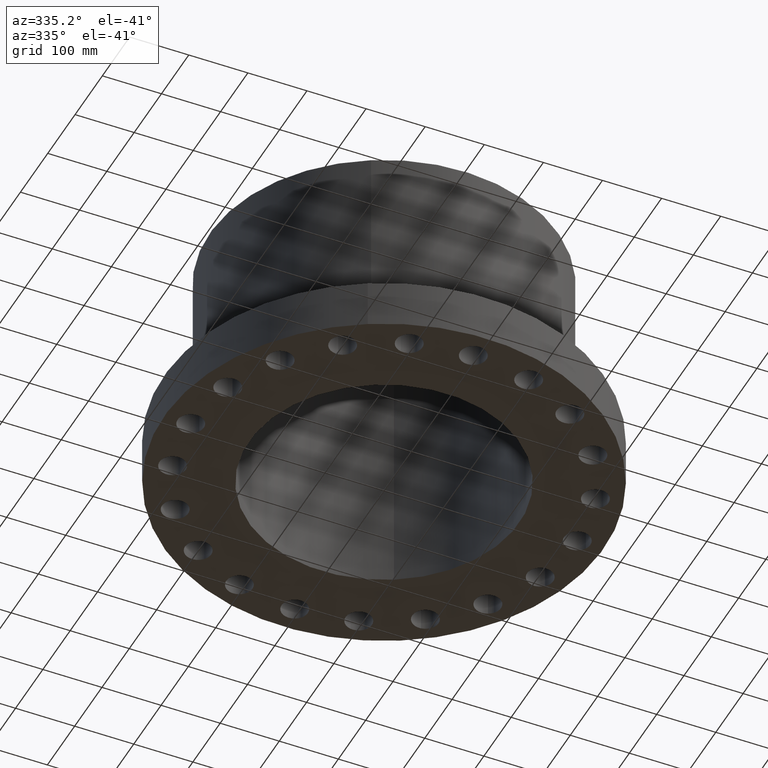
[diagram: clean part render]
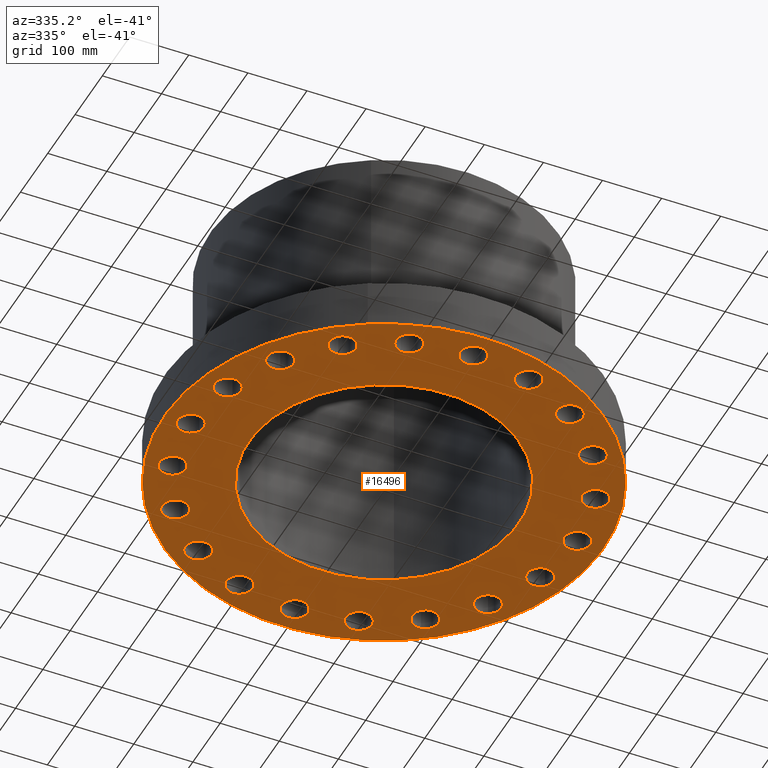
[diagram: same view with one face highlighted and labeled with its STEP entity id]
A machine part, auxiliary view. The second image highlights one B-rep face of the part: STEP entity #16496.
In plain terms, the highlighted planar face has unit normal (0, 0, 1).
Its self-contained STEP definition (entity closure, byte-faithful):
#65=AXIS2_PLACEMENT_3D('Circle Axis2P3D',#63,#64,$) ;
#82=AXIS2_PLACEMENT_3D('Circle Axis2P3D',#80,#81,$) ;
#505=AXIS2_PLACEMENT_3D('Circle Axis2P3D',#503,#504,$) ;
#531=AXIS2_PLACEMENT_3D('Circle Axis2P3D',#529,#530,$) ;
#605=AXIS2_PLACEMENT_3D('Circle Axis2P3D',#603,#604,$) ;
#617=AXIS2_PLACEMENT_3D('Circle Axis2P3D',#615,#616,$) ;
#648=AXIS2_PLACEMENT_3D('Circle Axis2P3D',#646,#647,$) ;
#660=AXIS2_PLACEMENT_3D('Circle Axis2P3D',#658,#659,$) ;
#691=AXIS2_PLACEMENT_3D('Circle Axis2P3D',#689,#690,$) ;
#703=AXIS2_PLACEMENT_3D('Circle Axis2P3D',#701,#702,$) ;
#734=AXIS2_PLACEMENT_3D('Circle Axis2P3D',#732,#733,$) ;
#746=AXIS2_PLACEMENT_3D('Circle Axis2P3D',#744,#745,$) ;
#777=AXIS2_PLACEMENT_3D('Circle Axis2P3D',#775,#776,$) ;
#789=AXIS2_PLACEMENT_3D('Circle Axis2P3D',#787,#788,$) ;
#820=AXIS2_PLACEMENT_3D('Circle Axis2P3D',#818,#819,$) ;
#832=AXIS2_PLACEMENT_3D('Circle Axis2P3D',#830,#831,$) ;
#863=AXIS2_PLACEMENT_3D('Circle Axis2P3D',#861,#862,$) ;
#875=AXIS2_PLACEMENT_3D('Circle Axis2P3D',#873,#874,$) ;
#906=AXIS2_PLACEMENT_3D('Circle Axis2P3D',#904,#905,$) ;
#918=AXIS2_PLACEMENT_3D('Circle Axis2P3D',#916,#917,$) ;
#949=AXIS2_PLACEMENT_3D('Circle Axis2P3D',#947,#948,$) ;
#961=AXIS2_PLACEMENT_3D('Circle Axis2P3D',#959,#960,$) ;
#992=AXIS2_PLACEMENT_3D('Circle Axis2P3D',#990,#991,$) ;
#1004=AXIS2_PLACEMENT_3D('Circle Axis2P3D',#1002,#1003,$) ;
#1035=AXIS2_PLACEMENT_3D('Circle Axis2P3D',#1033,#1034,$) ;
#1047=AXIS2_PLACEMENT_3D('Circle Axis2P3D',#1045,#1046,$) ;
#1078=AXIS2_PLACEMENT_3D('Circle Axis2P3D',#1076,#1077,$) ;
#1090=AXIS2_PLACEMENT_3D('Circle Axis2P3D',#1088,#1089,$) ;
#1121=AXIS2_PLACEMENT_3D('Circle Axis2P3D',#1119,#1120,$) ;
#1133=AXIS2_PLACEMENT_3D('Circle Axis2P3D',#1131,#1132,$) ;
#1164=AXIS2_PLACEMENT_3D('Circle Axis2P3D',#1162,#1163,$) ;
#1176=AXIS2_PLACEMENT_3D('Circle Axis2P3D',#1174,#1175,$) ;
#1207=AXIS2_PLACEMENT_3D('Circle Axis2P3D',#1205,#1206,$) ;
#1219=AXIS2_PLACEMENT_3D('Circle Axis2P3D',#1217,#1218,$) ;
#1250=AXIS2_PLACEMENT_3D('Circle Axis2P3D',#1248,#1249,$) ;
#1262=AXIS2_PLACEMENT_3D('Circle Axis2P3D',#1260,#1261,$) ;
#1293=AXIS2_PLACEMENT_3D('Circle Axis2P3D',#1291,#1292,$) ;
#1305=AXIS2_PLACEMENT_3D('Circle Axis2P3D',#1303,#1304,$) ;
#1336=AXIS2_PLACEMENT_3D('Circle Axis2P3D',#1334,#1335,$) ;
#1348=AXIS2_PLACEMENT_3D('Circle Axis2P3D',#1346,#1347,$) ;
#1379=AXIS2_PLACEMENT_3D('Circle Axis2P3D',#1377,#1378,$) ;
#1391=AXIS2_PLACEMENT_3D('Circle Axis2P3D',#1389,#1390,$) ;
#16367=AXIS2_PLACEMENT_3D('Circle Axis2P3D',#16365,#16366,$) ;
#16393=AXIS2_PLACEMENT_3D('Circle Axis2P3D',#16391,#16392,$) ;
#16406=AXIS2_PLACEMENT_3D('Plane Axis2P3D',#16403,#16404,#16405) ;
#46=CARTESIAN_POINT('Vertex',(12.1071152584,-0.41949734628,2.2401153548E-016)) ;
#60=CARTESIAN_POINT('Vertex',(13.6428847417,0.41949734628,2.2401153548E-016)) ;
#63=CARTESIAN_POINT('Axis2P3D Location',(12.8750000001,0.,0.)) ;
#80=CARTESIAN_POINT('Axis2P3D Location',(12.8750000001,0.,0.)) ;
#503=CARTESIAN_POINT('Axis2P3D Location',(0.,0.,3.35689481461E-015)) ;
#507=CARTESIAN_POINT('Vertex',(-7.01159850211,-12.8346449677,3.35689481461E-015)) ;
#509=CARTESIAN_POINT('Vertex',(7.01159850211,12.8346449677,3.35689481461E-015)) ;
#529=CARTESIAN_POINT('Axis2P3D Location',(0.,0.,3.35689481461E-015)) ;
#593=CARTESIAN_POINT('Vertex',(11.3849190509,-4.14027005245,2.2401153548E-016)) ;
#600=CARTESIAN_POINT('Vertex',(13.1047862438,-3.81691755274,2.2401153548E-016)) ;
#603=CARTESIAN_POINT('Axis2P3D Location',(12.2448526473,-3.97859380259,0.)) ;
#615=CARTESIAN_POINT('Axis2P3D Location',(12.2448526473,-3.97859380259,0.)) ;
#636=CARTESIAN_POINT('Vertex',(9.54828764338,-7.45576427893,2.22372426684E-016)) ;
#643=CARTESIAN_POINT('Vertex',(11.2838999619,-7.67970596767,2.22372426684E-016)) ;
#646=CARTESIAN_POINT('Axis2P3D Location',(10.4160938026,-7.5677351233,-3.2782175924E-018)) ;
#658=CARTESIAN_POINT('Axis2P3D Location',(10.4160938026,-7.5677351233,-3.2782175924E-018)) ;
#679=CARTESIAN_POINT('Vertex',(6.77700331445,-10.0414363504,2.2401153548E-016)) ;
#686=CARTESIAN_POINT('Vertex',(8.35846693214,-10.7907512548,2.2401153548E-016)) ;
#689=CARTESIAN_POINT('Axis2P3D Location',(7.5677351233,-10.4160938026,0.)) ;
#701=CARTESIAN_POINT('Axis2P3D Location',(7.5677351233,-10.4160938026,0.)) ;
#722=CARTESIAN_POINT('Vertex',(3.34233868295,-11.6441826691,2.2401153548E-016)) ;
#729=CARTESIAN_POINT('Vertex',(4.61484892224,-12.8455226256,2.2401153548E-016)) ;
#732=CARTESIAN_POINT('Axis2P3D Location',(3.97859380259,-12.2448526473,0.)) ;
#744=CARTESIAN_POINT('Axis2P3D Location',(3.97859380259,-12.2448526473,0.)) ;
#765=CARTESIAN_POINT('Vertex',(-0.41949734628,-12.1071152584,2.2401153548E-016)) ;
#772=CARTESIAN_POINT('Vertex',(0.41949734628,-13.6428847417,2.2401153548E-016)) ;
#775=CARTESIAN_POINT('Axis2P3D Location',(3.64719066538E-015,-12.8750000001,0.)) ;
#787=CARTESIAN_POINT('Axis2P3D Location',(3.64719066538E-015,-12.8750000001,0.)) ;
#808=CARTESIAN_POINT('Vertex',(-4.14027005245,-11.3849190509,2.2401153548E-016)) ;
#815=CARTESIAN_POINT('Vertex',(-3.81691755274,-13.1047862438,2.2401153548E-016)) ;
#818=CARTESIAN_POINT('Axis2P3D Location',(-3.97859380259,-12.2448526473,0.)) ;
#830=CARTESIAN_POINT('Axis2P3D Location',(-3.97859380259,-12.2448526473,0.)) ;
#851=CARTESIAN_POINT('Vertex',(-7.45576427893,-9.54828764338,2.2401153548E-016)) ;
#858=CARTESIAN_POINT('Vertex',(-7.67970596767,-11.2838999619,2.2401153548E-016)) ;
#861=CARTESIAN_POINT('Axis2P3D Location',(-7.5677351233,-10.4160938026,0.)) ;
#873=CARTESIAN_POINT('Axis2P3D Location',(-7.5677351233,-10.4160938026,0.)) ;
#894=CARTESIAN_POINT('Vertex',(-10.0414363504,-6.77700331445,2.2401153548E-016)) ;
#901=CARTESIAN_POINT('Vertex',(-10.7907512548,-8.35846693214,2.2401153548E-016)) ;
#904=CARTESIAN_POINT('Axis2P3D Location',(-10.4160938026,-7.5677351233,0.)) ;
#916=CARTESIAN_POINT('Axis2P3D Location',(-10.4160938026,-7.5677351233,0.)) ;
#937=CARTESIAN_POINT('Vertex',(-11.6441826691,-3.34233868295,2.2401153548E-016)) ;
#944=CARTESIAN_POINT('Vertex',(-12.8455226256,-4.61484892224,2.2401153548E-016)) ;
#947=CARTESIAN_POINT('Axis2P3D Location',(-12.2448526473,-3.97859380259,0.)) ;
#959=CARTESIAN_POINT('Axis2P3D Location',(-12.2448526473,-3.97859380259,0.)) ;
#980=CARTESIAN_POINT('Vertex',(-12.1071152584,0.41949734628,2.2401153548E-016)) ;
#987=CARTESIAN_POINT('Vertex',(-13.6428847417,-0.41949734628,2.2401153548E-016)) ;
#990=CARTESIAN_POINT('Axis2P3D Location',(-12.8750000001,-7.29438133075E-015,0.)) ;
#1002=CARTESIAN_POINT('Axis2P3D Location',(-12.8750000001,-7.29438133075E-015,0.)) ;
#1023=CARTESIAN_POINT('Vertex',(-11.3849190509,4.14027005245,2.2401153548E-016)) ;
#1030=CARTESIAN_POINT('Vertex',(-13.1047862438,3.81691755274,2.2401153548E-016)) ;
#1033=CARTESIAN_POINT('Axis2P3D Location',(-12.2448526473,3.97859380259,0.)) ;
#1045=CARTESIAN_POINT('Axis2P3D Location',(-12.2448526473,3.97859380259,0.)) ;
#1066=CARTESIAN_POINT('Vertex',(-9.54828764338,7.45576427893,2.22372426684E-016)) ;
#1073=CARTESIAN_POINT('Vertex',(-11.2838999619,7.67970596767,2.22372426684E-016)) ;
#1076=CARTESIAN_POINT('Axis2P3D Location',(-10.4160938026,7.5677351233,-3.2782175924E-018)) ;
#1088=CARTESIAN_POINT('Axis2P3D Location',(-10.4160938026,7.5677351233,-3.2782175924E-018)) ;
#1109=CARTESIAN_POINT('Vertex',(-6.77700331445,10.0414363504,2.2401153548E-016)) ;
#1116=CARTESIAN_POINT('Vertex',(-8.35846693214,10.7907512548,2.2401153548E-016)) ;
#1119=CARTESIAN_POINT('Axis2P3D Location',(-7.5677351233,10.4160938026,0.)) ;
#1131=CARTESIAN_POINT('Axis2P3D Location',(-7.5677351233,10.4160938026,0.)) ;
#1152=CARTESIAN_POINT('Vertex',(-3.34233868295,11.6441826691,2.22372426684E-016)) ;
#1159=CARTESIAN_POINT('Vertex',(-4.61484892224,12.8455226256,2.22372426684E-016)) ;
#1162=CARTESIAN_POINT('Axis2P3D Location',(-3.97859380259,12.2448526473,-3.2782175924E-018)) ;
#1174=CARTESIAN_POINT('Axis2P3D Location',(-3.97859380259,12.2448526473,-3.2782175924E-018)) ;
#1195=CARTESIAN_POINT('Vertex',(0.41949734628,12.1071152584,2.2401153548E-016)) ;
#1202=CARTESIAN_POINT('Vertex',(-0.41949734628,13.6428847417,2.2401153548E-016)) ;
#1205=CARTESIAN_POINT('Axis2P3D Location',(-1.38003962845E-014,12.8750000001,0.)) ;
#1217=CARTESIAN_POINT('Axis2P3D Location',(-1.38003962845E-014,12.8750000001,0.)) ;
#1238=CARTESIAN_POINT('Vertex',(4.14027005245,11.3849190509,2.22372426684E-016)) ;
#1245=CARTESIAN_POINT('Vertex',(3.81691755274,13.1047862438,2.22372426684E-016)) ;
#1248=CARTESIAN_POINT('Axis2P3D Location',(3.97859380259,12.2448526473,-3.2782175924E-018)) ;
#1260=CARTESIAN_POINT('Axis2P3D Location',(3.97859380259,12.2448526473,-3.2782175924E-018)) ;
#1281=CARTESIAN_POINT('Vertex',(7.45576427893,9.54828764338,2.2401153548E-016)) ;
#1288=CARTESIAN_POINT('Vertex',(7.67970596767,11.2838999619,2.2401153548E-016)) ;
#1291=CARTESIAN_POINT('Axis2P3D Location',(7.5677351233,10.4160938026,0.)) ;
#1303=CARTESIAN_POINT('Axis2P3D Location',(7.5677351233,10.4160938026,0.)) ;
#1324=CARTESIAN_POINT('Vertex',(10.0414363504,6.77700331445,2.2401153548E-016)) ;
#1331=CARTESIAN_POINT('Vertex',(10.7907512548,8.35846693214,2.2401153548E-016)) ;
#1334=CARTESIAN_POINT('Axis2P3D Location',(10.4160938026,7.5677351233,0.)) ;
#1346=CARTESIAN_POINT('Axis2P3D Location',(10.4160938026,7.5677351233,0.)) ;
#1367=CARTESIAN_POINT('Vertex',(11.6441826691,3.34233868295,2.22372426684E-016)) ;
#1374=CARTESIAN_POINT('Vertex',(12.8455226256,4.61484892224,2.22372426684E-016)) ;
#1377=CARTESIAN_POINT('Axis2P3D Location',(12.2448526473,3.97859380259,-3.2782175924E-018)) ;
#1389=CARTESIAN_POINT('Axis2P3D Location',(12.2448526473,3.97859380259,-3.2782175924E-018)) ;
#16365=CARTESIAN_POINT('Axis2P3D Location',(0.,0.,0.)) ;
#16369=CARTESIAN_POINT('Vertex',(-4.31482984746,-7.89824305704,0.)) ;
#16371=CARTESIAN_POINT('Vertex',(4.31482984746,7.89824305704,0.)) ;
#16391=CARTESIAN_POINT('Axis2P3D Location',(0.,0.,0.)) ;
#16403=CARTESIAN_POINT('Axis2P3D Location',(0.,0.,0.)) ;
#64=DIRECTION('Axis2P3D Direction',(0.,-0.,0.0393700787402)) ;
#81=DIRECTION('Axis2P3D Direction',(0.,-0.,0.0393700787402)) ;
#504=DIRECTION('Axis2P3D Direction',(0.,0.,-0.0393700787402)) ;
#530=DIRECTION('Axis2P3D Direction',(0.,0.,-0.0393700787402)) ;
#604=DIRECTION('Axis2P3D Direction',(-0.,0.,0.0393700787402)) ;
#616=DIRECTION('Axis2P3D Direction',(-0.,0.,0.0393700787402)) ;
#647=DIRECTION('Axis2P3D Direction',(-0.,0.,0.0393700787402)) ;
#659=DIRECTION('Axis2P3D Direction',(-0.,0.,0.0393700787402)) ;
#690=DIRECTION('Axis2P3D Direction',(-0.,0.,0.0393700787402)) ;
#702=DIRECTION('Axis2P3D Direction',(-0.,0.,0.0393700787402)) ;
#733=DIRECTION('Axis2P3D Direction',(-0.,0.,0.0393700787402)) ;
#745=DIRECTION('Axis2P3D Direction',(-0.,0.,0.0393700787402)) ;
#776=DIRECTION('Axis2P3D Direction',(-0.,0.,0.0393700787402)) ;
#788=DIRECTION('Axis2P3D Direction',(-0.,0.,0.0393700787402)) ;
#819=DIRECTION('Axis2P3D Direction',(0.,0.,0.0393700787402)) ;
#831=DIRECTION('Axis2P3D Direction',(0.,0.,0.0393700787402)) ;
#862=DIRECTION('Axis2P3D Direction',(0.,0.,0.0393700787402)) ;
#874=DIRECTION('Axis2P3D Direction',(0.,0.,0.0393700787402)) ;
#905=DIRECTION('Axis2P3D Direction',(0.,0.,0.0393700787402)) ;
#917=DIRECTION('Axis2P3D Direction',(0.,0.,0.0393700787402)) ;
#948=DIRECTION('Axis2P3D Direction',(0.,0.,0.0393700787402)) ;
#960=DIRECTION('Axis2P3D Direction',(0.,0.,0.0393700787402)) ;
#991=DIRECTION('Axis2P3D Direction',(0.,0.,0.0393700787402)) ;
#1003=DIRECTION('Axis2P3D Direction',(0.,0.,0.0393700787402)) ;
#1034=DIRECTION('Axis2P3D Direction',(0.,0.,0.0393700787402)) ;
#1046=DIRECTION('Axis2P3D Direction',(0.,0.,0.0393700787402)) ;
#1077=DIRECTION('Axis2P3D Direction',(0.,0.,0.0393700787402)) ;
#1089=DIRECTION('Axis2P3D Direction',(0.,0.,0.0393700787402)) ;
#1120=DIRECTION('Axis2P3D Direction',(0.,0.,0.0393700787402)) ;
#1132=DIRECTION('Axis2P3D Direction',(0.,0.,0.0393700787402)) ;
#1163=DIRECTION('Axis2P3D Direction',(0.,0.,0.0393700787402)) ;
#1175=DIRECTION('Axis2P3D Direction',(0.,0.,0.0393700787402)) ;
#1206=DIRECTION('Axis2P3D Direction',(0.,0.,0.0393700787402)) ;
#1218=DIRECTION('Axis2P3D Direction',(0.,0.,0.0393700787402)) ;
#1249=DIRECTION('Axis2P3D Direction',(0.,-0.,0.0393700787402)) ;
#1261=DIRECTION('Axis2P3D Direction',(0.,-0.,0.0393700787402)) ;
#1292=DIRECTION('Axis2P3D Direction',(0.,-0.,0.0393700787402)) ;
#1304=DIRECTION('Axis2P3D Direction',(0.,-0.,0.0393700787402)) ;
#1335=DIRECTION('Axis2P3D Direction',(0.,-0.,0.0393700787402)) ;
#1347=DIRECTION('Axis2P3D Direction',(0.,-0.,0.0393700787402)) ;
#1378=DIRECTION('Axis2P3D Direction',(0.,-0.,0.0393700787402)) ;
#1390=DIRECTION('Axis2P3D Direction',(0.,-0.,0.0393700787402)) ;
#16366=DIRECTION('Axis2P3D Direction',(0.,0.,-0.0393700787402)) ;
#16392=DIRECTION('Axis2P3D Direction',(0.,0.,-0.0393700787402)) ;
#16404=DIRECTION('Axis2P3D Direction',(0.,0.,0.0393700787402)) ;
#16405=DIRECTION('Axis2P3D XDirection',(0.0393700787402,0.,0.)) ;
#16409=ORIENTED_EDGE('',*,*,#533,.T.) ;
#16410=ORIENTED_EDGE('',*,*,#511,.T.) ;
#16413=ORIENTED_EDGE('',*,*,#1381,.F.) ;
#16414=ORIENTED_EDGE('',*,*,#1393,.F.) ;
#16417=ORIENTED_EDGE('',*,*,#1338,.F.) ;
#16418=ORIENTED_EDGE('',*,*,#1350,.F.) ;
#16421=ORIENTED_EDGE('',*,*,#1295,.F.) ;
#16422=ORIENTED_EDGE('',*,*,#1307,.F.) ;
#16425=ORIENTED_EDGE('',*,*,#1252,.F.) ;
#16426=ORIENTED_EDGE('',*,*,#1264,.F.) ;
#16429=ORIENTED_EDGE('',*,*,#1209,.F.) ;
#16430=ORIENTED_EDGE('',*,*,#1221,.F.) ;
#16433=ORIENTED_EDGE('',*,*,#1166,.F.) ;
#16434=ORIENTED_EDGE('',*,*,#1178,.F.) ;
#16437=ORIENTED_EDGE('',*,*,#1123,.F.) ;
#16438=ORIENTED_EDGE('',*,*,#1135,.F.) ;
#16441=ORIENTED_EDGE('',*,*,#1080,.F.) ;
#16442=ORIENTED_EDGE('',*,*,#1092,.F.) ;
#16445=ORIENTED_EDGE('',*,*,#1037,.F.) ;
#16446=ORIENTED_EDGE('',*,*,#1049,.F.) ;
#16449=ORIENTED_EDGE('',*,*,#994,.F.) ;
#16450=ORIENTED_EDGE('',*,*,#1006,.F.) ;
#16453=ORIENTED_EDGE('',*,*,#951,.F.) ;
#16454=ORIENTED_EDGE('',*,*,#963,.F.) ;
#16457=ORIENTED_EDGE('',*,*,#908,.F.) ;
#16458=ORIENTED_EDGE('',*,*,#920,.F.) ;
#16461=ORIENTED_EDGE('',*,*,#865,.F.) ;
#16462=ORIENTED_EDGE('',*,*,#877,.F.) ;
#16465=ORIENTED_EDGE('',*,*,#822,.F.) ;
#16466=ORIENTED_EDGE('',*,*,#834,.F.) ;
#16469=ORIENTED_EDGE('',*,*,#779,.F.) ;
#16470=ORIENTED_EDGE('',*,*,#791,.F.) ;
#16473=ORIENTED_EDGE('',*,*,#736,.F.) ;
#16474=ORIENTED_EDGE('',*,*,#748,.F.) ;
#16477=ORIENTED_EDGE('',*,*,#693,.F.) ;
#16478=ORIENTED_EDGE('',*,*,#705,.F.) ;
#16481=ORIENTED_EDGE('',*,*,#650,.F.) ;
#16482=ORIENTED_EDGE('',*,*,#662,.F.) ;
#16485=ORIENTED_EDGE('',*,*,#607,.F.) ;
#16486=ORIENTED_EDGE('',*,*,#619,.F.) ;
#16489=ORIENTED_EDGE('',*,*,#84,.F.) ;
#16490=ORIENTED_EDGE('',*,*,#67,.F.) ;
#16493=ORIENTED_EDGE('',*,*,#16395,.T.) ;
#16494=ORIENTED_EDGE('',*,*,#16373,.T.) ;
#16415=FACE_BOUND('',#16412,.T.) ;
#16419=FACE_BOUND('',#16416,.T.) ;
#16423=FACE_BOUND('',#16420,.T.) ;
#16427=FACE_BOUND('',#16424,.T.) ;
#16431=FACE_BOUND('',#16428,.T.) ;
#16435=FACE_BOUND('',#16432,.T.) ;
#16439=FACE_BOUND('',#16436,.T.) ;
#16443=FACE_BOUND('',#16440,.T.) ;
#16447=FACE_BOUND('',#16444,.T.) ;
#16451=FACE_BOUND('',#16448,.T.) ;
#16455=FACE_BOUND('',#16452,.T.) ;
#16459=FACE_BOUND('',#16456,.T.) ;
#16463=FACE_BOUND('',#16460,.T.) ;
#16467=FACE_BOUND('',#16464,.T.) ;
#16471=FACE_BOUND('',#16468,.T.) ;
#16475=FACE_BOUND('',#16472,.T.) ;
#16479=FACE_BOUND('',#16476,.T.) ;
#16483=FACE_BOUND('',#16480,.T.) ;
#16487=FACE_BOUND('',#16484,.T.) ;
#16491=FACE_BOUND('',#16488,.T.) ;
#16495=FACE_BOUND('',#16492,.T.) ;
#16496=ADVANCED_FACE('PartBody',(#16411,#16415,#16419,#16423,#16427,#16431,#16435,#16439,#16443,#16447,#16451,#16455,#16459,#16463,#16467,#16471,#16475,#16479,#16483,#16487,#16491,#16495),#16407,.F.) ;
#66=CIRCLE('generated circle',#65,0.875000000004) ;
#83=CIRCLE('generated circle',#82,0.875000000004) ;
#506=CIRCLE('generated circle',#505,14.6250000001) ;
#532=CIRCLE('generated circle',#531,14.6250000001) ;
#606=CIRCLE('generated circle',#605,0.875000000004) ;
#618=CIRCLE('generated circle',#617,0.875000000004) ;
#649=CIRCLE('generated circle',#648,0.875000000004) ;
#661=CIRCLE('generated circle',#660,0.875000000004) ;
#692=CIRCLE('generated circle',#691,0.875000000004) ;
#704=CIRCLE('generated circle',#703,0.875000000004) ;
#735=CIRCLE('generated circle',#734,0.875000000004) ;
#747=CIRCLE('generated circle',#746,0.875000000004) ;
#778=CIRCLE('generated circle',#777,0.875000000004) ;
#790=CIRCLE('generated circle',#789,0.875000000004) ;
#821=CIRCLE('generated circle',#820,0.875000000004) ;
#833=CIRCLE('generated circle',#832,0.875000000004) ;
#864=CIRCLE('generated circle',#863,0.875000000004) ;
#876=CIRCLE('generated circle',#875,0.875000000004) ;
#907=CIRCLE('generated circle',#906,0.875000000004) ;
#919=CIRCLE('generated circle',#918,0.875000000004) ;
#950=CIRCLE('generated circle',#949,0.875000000004) ;
#962=CIRCLE('generated circle',#961,0.875000000004) ;
#993=CIRCLE('generated circle',#992,0.875000000004) ;
#1005=CIRCLE('generated circle',#1004,0.875000000004) ;
#1036=CIRCLE('generated circle',#1035,0.875000000004) ;
#1048=CIRCLE('generated circle',#1047,0.875000000004) ;
#1079=CIRCLE('generated circle',#1078,0.875000000004) ;
#1091=CIRCLE('generated circle',#1090,0.875000000004) ;
#1122=CIRCLE('generated circle',#1121,0.875000000003) ;
#1134=CIRCLE('generated circle',#1133,0.875000000003) ;
#1165=CIRCLE('generated circle',#1164,0.875000000004) ;
#1177=CIRCLE('generated circle',#1176,0.875000000004) ;
#1208=CIRCLE('generated circle',#1207,0.875000000004) ;
#1220=CIRCLE('generated circle',#1219,0.875000000004) ;
#1251=CIRCLE('generated circle',#1250,0.875000000004) ;
#1263=CIRCLE('generated circle',#1262,0.875000000004) ;
#1294=CIRCLE('generated circle',#1293,0.875000000004) ;
#1306=CIRCLE('generated circle',#1305,0.875000000004) ;
#1337=CIRCLE('generated circle',#1336,0.875000000003) ;
#1349=CIRCLE('generated circle',#1348,0.875000000003) ;
#1380=CIRCLE('generated circle',#1379,0.875000000004) ;
#1392=CIRCLE('generated circle',#1391,0.875000000004) ;
#16368=CIRCLE('generated circle',#16367,9.00000000004) ;
#16394=CIRCLE('generated circle',#16393,9.00000000004) ;
#67=EDGE_CURVE('',#61,#47,#66,.F.) ;
#84=EDGE_CURVE('',#47,#61,#83,.F.) ;
#511=EDGE_CURVE('',#508,#510,#506,.T.) ;
#533=EDGE_CURVE('',#510,#508,#532,.T.) ;
#607=EDGE_CURVE('',#601,#594,#606,.F.) ;
#619=EDGE_CURVE('',#594,#601,#618,.F.) ;
#650=EDGE_CURVE('',#644,#637,#649,.F.) ;
#662=EDGE_CURVE('',#637,#644,#661,.F.) ;
#693=EDGE_CURVE('',#687,#680,#692,.F.) ;
#705=EDGE_CURVE('',#680,#687,#704,.F.) ;
#736=EDGE_CURVE('',#730,#723,#735,.F.) ;
#748=EDGE_CURVE('',#723,#730,#747,.F.) ;
#779=EDGE_CURVE('',#773,#766,#778,.F.) ;
#791=EDGE_CURVE('',#766,#773,#790,.F.) ;
#822=EDGE_CURVE('',#816,#809,#821,.F.) ;
#834=EDGE_CURVE('',#809,#816,#833,.F.) ;
#865=EDGE_CURVE('',#859,#852,#864,.F.) ;
#877=EDGE_CURVE('',#852,#859,#876,.F.) ;
#908=EDGE_CURVE('',#902,#895,#907,.F.) ;
#920=EDGE_CURVE('',#895,#902,#919,.F.) ;
#951=EDGE_CURVE('',#945,#938,#950,.F.) ;
#963=EDGE_CURVE('',#938,#945,#962,.F.) ;
#994=EDGE_CURVE('',#988,#981,#993,.F.) ;
#1006=EDGE_CURVE('',#981,#988,#1005,.F.) ;
#1037=EDGE_CURVE('',#1031,#1024,#1036,.F.) ;
#1049=EDGE_CURVE('',#1024,#1031,#1048,.F.) ;
#1080=EDGE_CURVE('',#1074,#1067,#1079,.F.) ;
#1092=EDGE_CURVE('',#1067,#1074,#1091,.F.) ;
#1123=EDGE_CURVE('',#1117,#1110,#1122,.F.) ;
#1135=EDGE_CURVE('',#1110,#1117,#1134,.F.) ;
#1166=EDGE_CURVE('',#1160,#1153,#1165,.F.) ;
#1178=EDGE_CURVE('',#1153,#1160,#1177,.F.) ;
#1209=EDGE_CURVE('',#1203,#1196,#1208,.F.) ;
#1221=EDGE_CURVE('',#1196,#1203,#1220,.F.) ;
#1252=EDGE_CURVE('',#1246,#1239,#1251,.F.) ;
#1264=EDGE_CURVE('',#1239,#1246,#1263,.F.) ;
#1295=EDGE_CURVE('',#1289,#1282,#1294,.F.) ;
#1307=EDGE_CURVE('',#1282,#1289,#1306,.F.) ;
#1338=EDGE_CURVE('',#1332,#1325,#1337,.F.) ;
#1350=EDGE_CURVE('',#1325,#1332,#1349,.F.) ;
#1381=EDGE_CURVE('',#1375,#1368,#1380,.F.) ;
#1393=EDGE_CURVE('',#1368,#1375,#1392,.F.) ;
#16373=EDGE_CURVE('',#16370,#16372,#16368,.F.) ;
#16395=EDGE_CURVE('',#16372,#16370,#16394,.F.) ;
#16408=EDGE_LOOP('',(#16409,#16410)) ;
#16412=EDGE_LOOP('',(#16413,#16414)) ;
#16416=EDGE_LOOP('',(#16417,#16418)) ;
#16420=EDGE_LOOP('',(#16421,#16422)) ;
#16424=EDGE_LOOP('',(#16425,#16426)) ;
#16428=EDGE_LOOP('',(#16429,#16430)) ;
#16432=EDGE_LOOP('',(#16433,#16434)) ;
#16436=EDGE_LOOP('',(#16437,#16438)) ;
#16440=EDGE_LOOP('',(#16441,#16442)) ;
#16444=EDGE_LOOP('',(#16445,#16446)) ;
#16448=EDGE_LOOP('',(#16449,#16450)) ;
#16452=EDGE_LOOP('',(#16453,#16454)) ;
#16456=EDGE_LOOP('',(#16457,#16458)) ;
#16460=EDGE_LOOP('',(#16461,#16462)) ;
#16464=EDGE_LOOP('',(#16465,#16466)) ;
#16468=EDGE_LOOP('',(#16469,#16470)) ;
#16472=EDGE_LOOP('',(#16473,#16474)) ;
#16476=EDGE_LOOP('',(#16477,#16478)) ;
#16480=EDGE_LOOP('',(#16481,#16482)) ;
#16484=EDGE_LOOP('',(#16485,#16486)) ;
#16488=EDGE_LOOP('',(#16489,#16490)) ;
#16492=EDGE_LOOP('',(#16493,#16494)) ;
#16411=FACE_OUTER_BOUND('',#16408,.T.) ;
#16407=PLANE('',#16406) ;
#47=VERTEX_POINT('',#46) ;
#61=VERTEX_POINT('',#60) ;
#508=VERTEX_POINT('',#507) ;
#510=VERTEX_POINT('',#509) ;
#594=VERTEX_POINT('',#593) ;
#601=VERTEX_POINT('',#600) ;
#637=VERTEX_POINT('',#636) ;
#644=VERTEX_POINT('',#643) ;
#680=VERTEX_POINT('',#679) ;
#687=VERTEX_POINT('',#686) ;
#723=VERTEX_POINT('',#722) ;
#730=VERTEX_POINT('',#729) ;
#766=VERTEX_POINT('',#765) ;
#773=VERTEX_POINT('',#772) ;
#809=VERTEX_POINT('',#808) ;
#816=VERTEX_POINT('',#815) ;
#852=VERTEX_POINT('',#851) ;
#859=VERTEX_POINT('',#858) ;
#895=VERTEX_POINT('',#894) ;
#902=VERTEX_POINT('',#901) ;
#938=VERTEX_POINT('',#937) ;
#945=VERTEX_POINT('',#944) ;
#981=VERTEX_POINT('',#980) ;
#988=VERTEX_POINT('',#987) ;
#1024=VERTEX_POINT('',#1023) ;
#1031=VERTEX_POINT('',#1030) ;
#1067=VERTEX_POINT('',#1066) ;
#1074=VERTEX_POINT('',#1073) ;
#1110=VERTEX_POINT('',#1109) ;
#1117=VERTEX_POINT('',#1116) ;
#1153=VERTEX_POINT('',#1152) ;
#1160=VERTEX_POINT('',#1159) ;
#1196=VERTEX_POINT('',#1195) ;
#1203=VERTEX_POINT('',#1202) ;
#1239=VERTEX_POINT('',#1238) ;
#1246=VERTEX_POINT('',#1245) ;
#1282=VERTEX_POINT('',#1281) ;
#1289=VERTEX_POINT('',#1288) ;
#1325=VERTEX_POINT('',#1324) ;
#1332=VERTEX_POINT('',#1331) ;
#1368=VERTEX_POINT('',#1367) ;
#1375=VERTEX_POINT('',#1374) ;
#16370=VERTEX_POINT('',#16369) ;
#16372=VERTEX_POINT('',#16371) ;